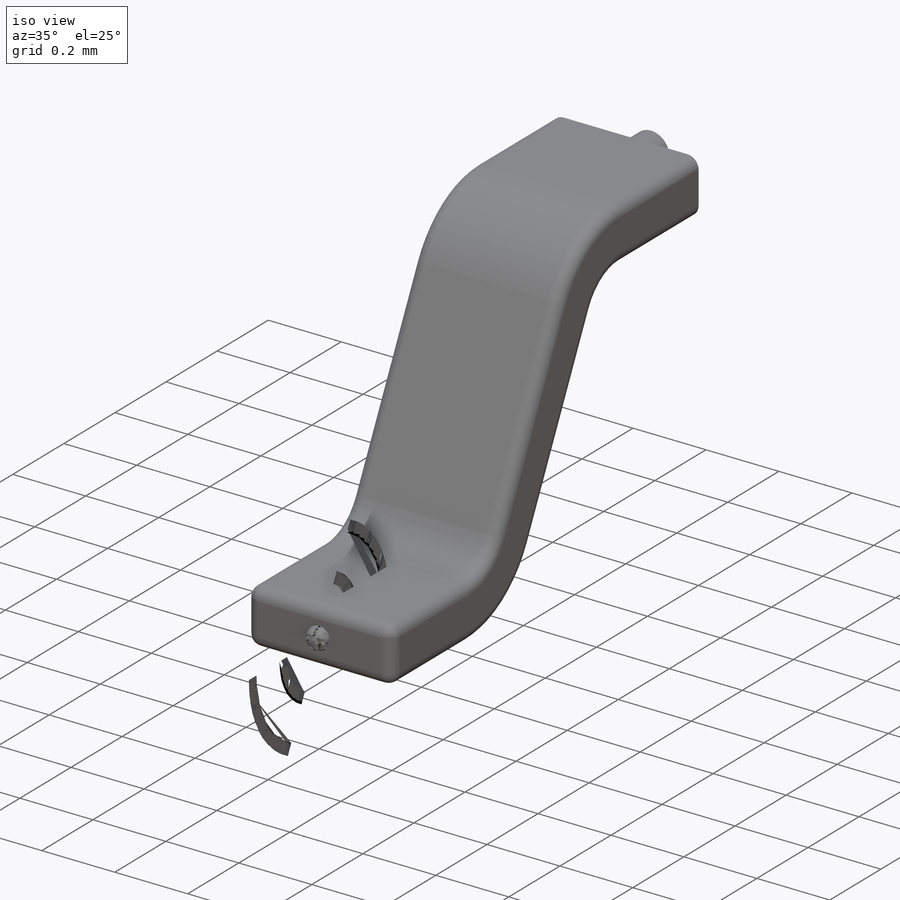
[diagram: iso view]
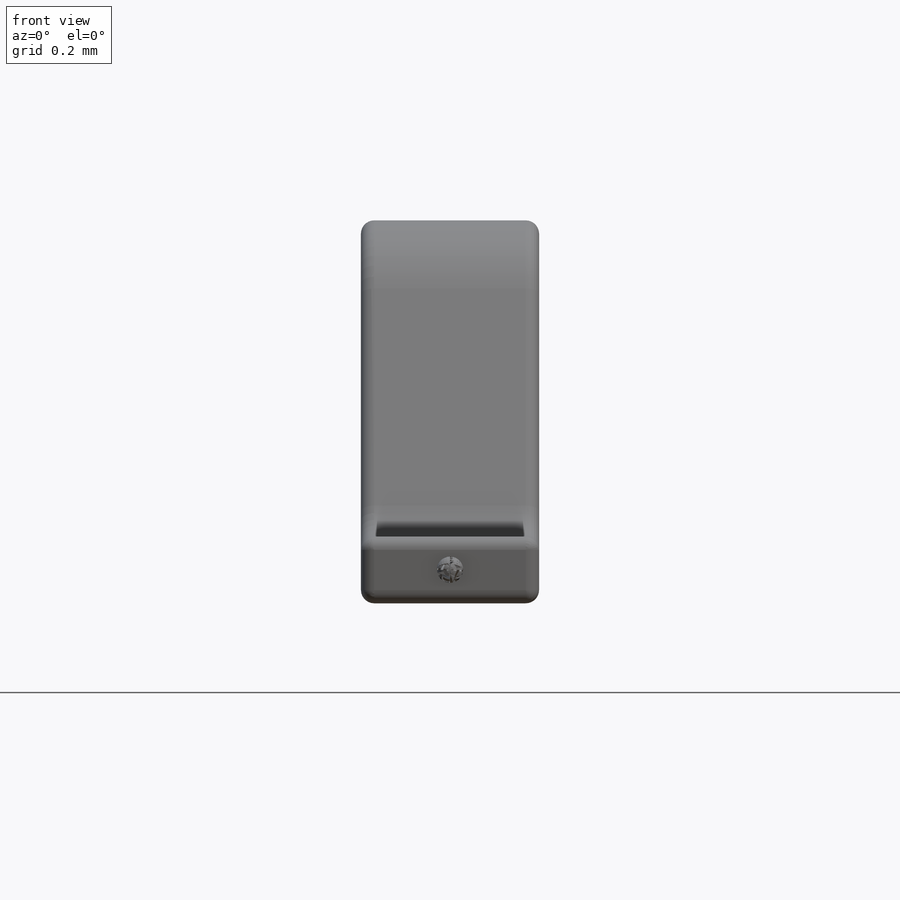
[diagram: front view]
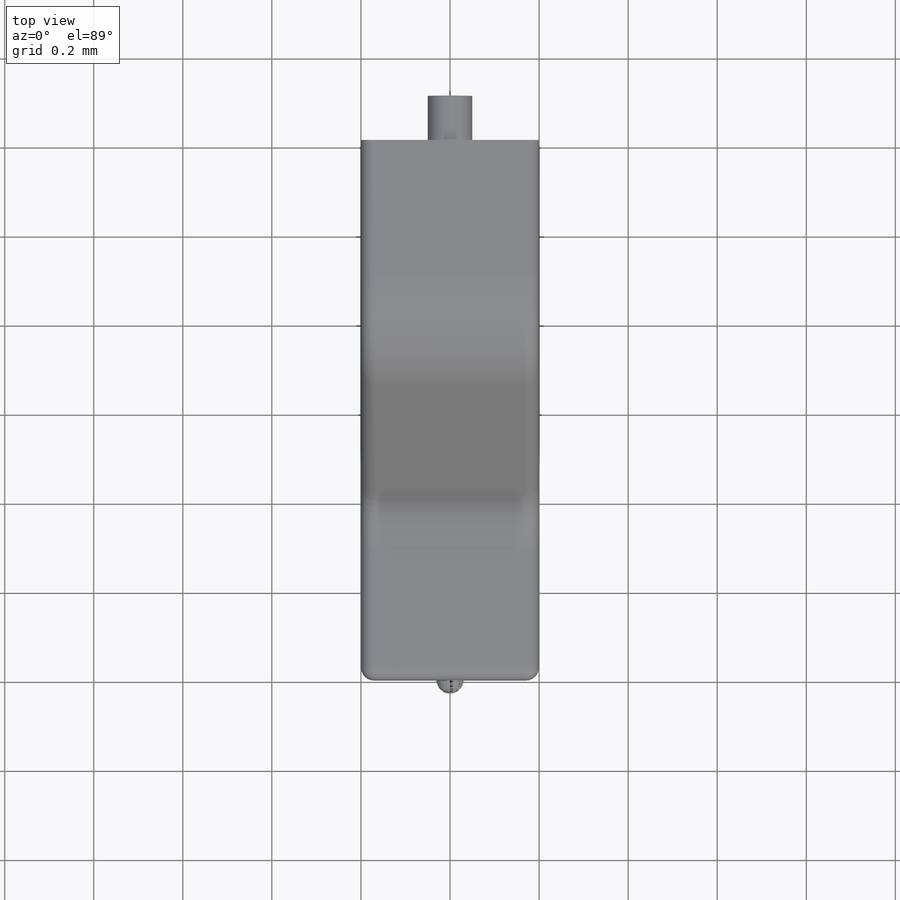
[diagram: top view]
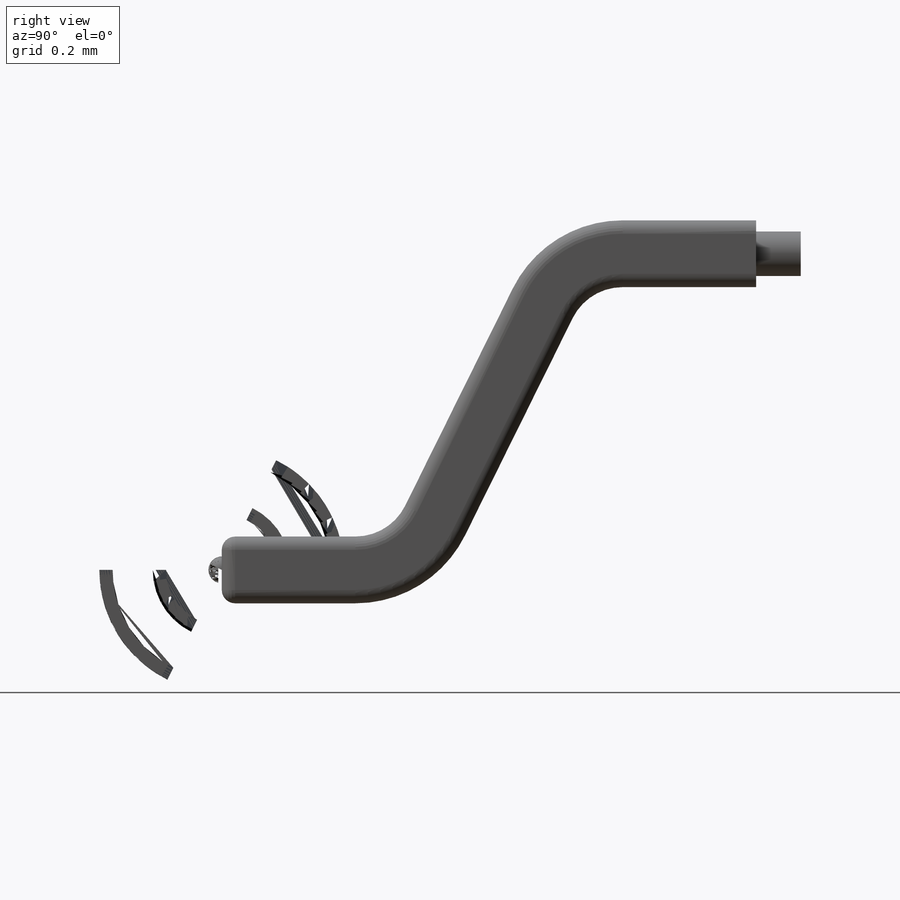
[diagram: right view]
SOLIDWORKS PART (.sldprt)
format: sldprt  version: not decoded by parser v0  size: 285,696 bytes
history: native  units: mm
features: plane x3, sketch x3, material x1, sweep x1, fillet x1, extrude x1 (+10 scaffold rows collapsed)
feature tree (20):
  scaffold x10  (default folders/planes/origin — collapsed)
  material  "Aço inoxidável fundido"
  plane  "Plano frontal"
  plane  "Plano superior"
  plane  "Plano direito"
  sketch  "Esboço1"  dims[c1.D3=0.03mm c1.D1=0.4mm c1.D2=0.15mm c2.D1=0.4mm c2.D2=0.15mm]
  sketch  "Esboço2"  dims[c1.D5=0.2mm c1.D1=0.3mm c1.D2=0.6mm c1.D3=0.3mm c1.D4=0.71mm c2.D1=0.3mm c2.D3=0.3mm c2.D2=0.6mm]
  sweep  "Varredura1"
  fillet  "Filete2"  Radius=0.03mm
  sketch  "Esboço3"  dims[D1=0.1mm]
  extrude  "Ressalto-extrusão1"  Depth=0.1mm
decode coverage: 5 of 6 modeling features carry decoded parameters
note: suppression state not decoded; provenance and decode notes live in map.json
